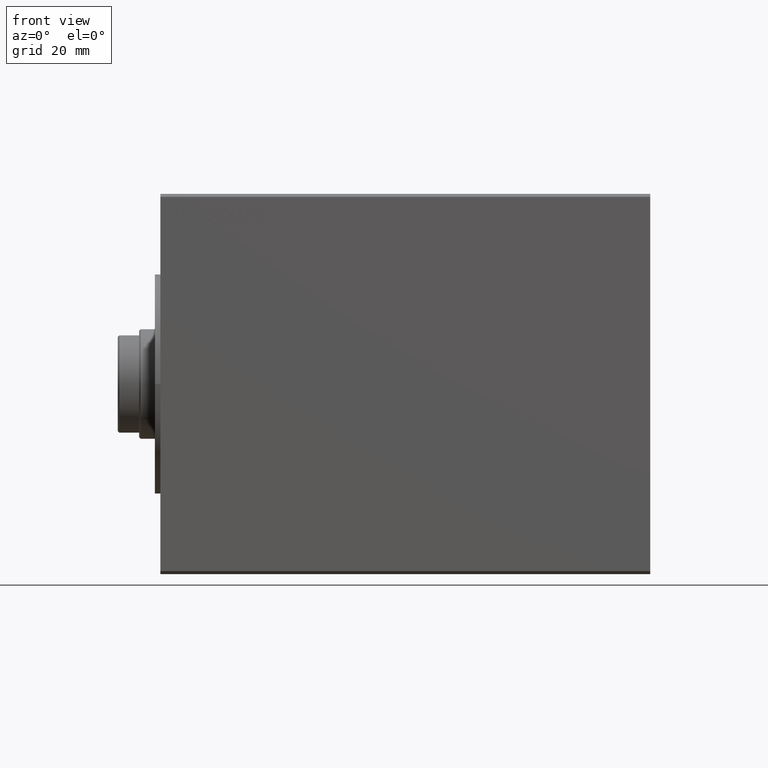
[diagram: clean part render]
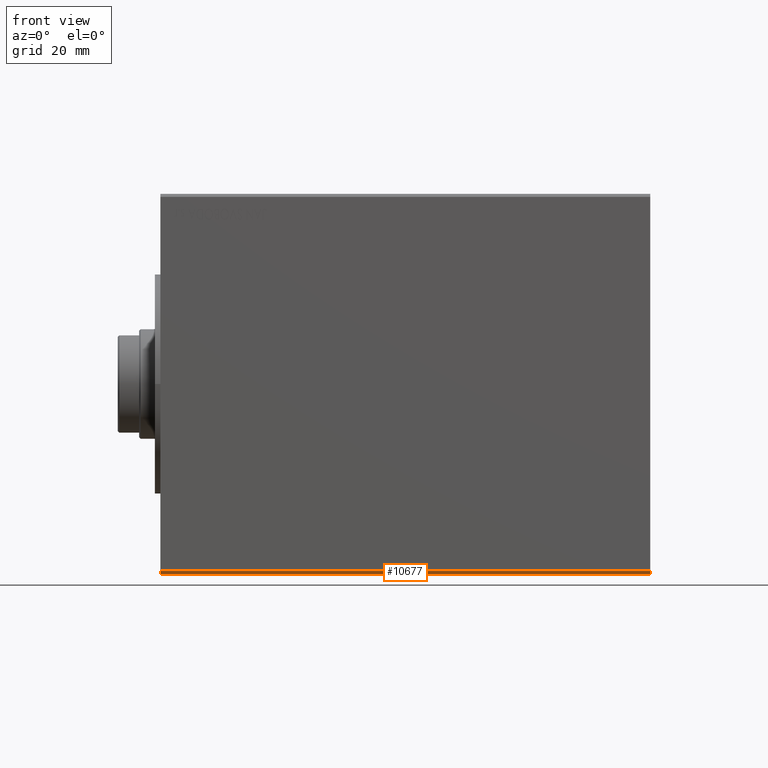
[diagram: same view with one face highlighted and labeled with its STEP entity id]
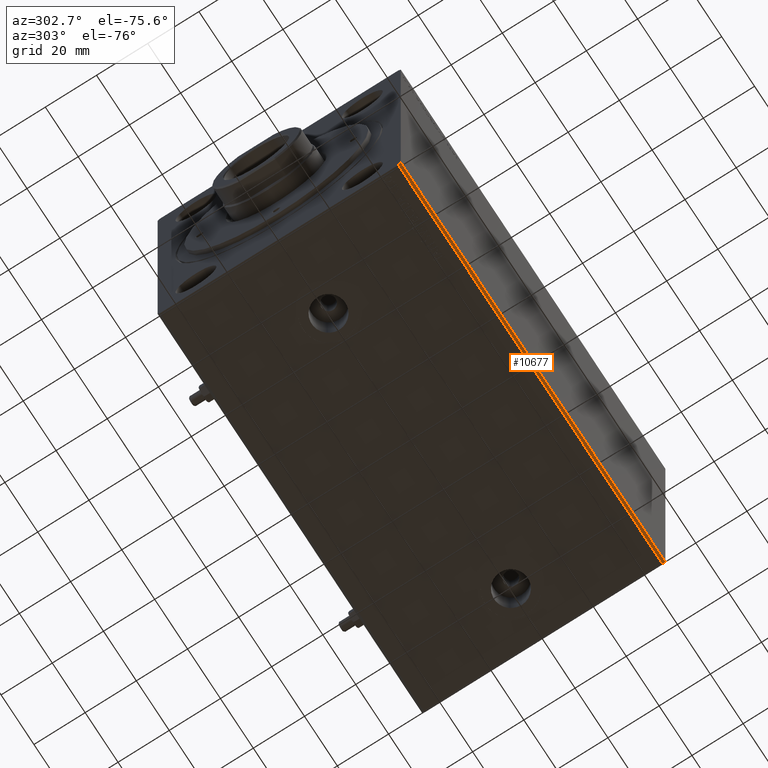
[diagram: same view with one face highlighted and labeled with its STEP entity id]
A machine part, front view. The second image highlights one B-rep face of the part: STEP entity #10677.
A second angle (auxiliary view) of the same face is appended — the face is thin or edge-on in the first view.
In plain terms, the highlighted planar face has unit normal (0, 0.7071, 0.7071).
Its self-contained STEP definition (entity closure, byte-faithful):
#1593 = ORIENTED_EDGE ( 'NONE', *, *, #7873, .F. ) ;
#3307 = LINE ( 'NONE', #23616, #25229 ) ;
#4837 = ORIENTED_EDGE ( 'NONE', *, *, #7835, .T. ) ;
#5631 = CARTESIAN_POINT ( 'NONE',  ( 0.000000000000000000, -46.50000000000000000, -62.50000000000001421 ) ) ;
#5687 = VECTOR ( 'NONE', #14054, 1000.000000000000114 ) ;
#6146 = CARTESIAN_POINT ( 'NONE',  ( 0.000000000000000000, -47.49999999999999289, -61.50000000000001421 ) ) ;
#6345 = VECTOR ( 'NONE', #16417, 1000.000000000000114 ) ;
#6965 = VERTEX_POINT ( 'NONE', #12879 ) ;
#7248 = AXIS2_PLACEMENT_3D ( 'NONE', #10171, #17034, #20245 ) ;
#7835 = EDGE_CURVE ( 'NONE', #6965, #29598, #36856, .T. ) ;
#7873 = EDGE_CURVE ( 'NONE', #6965, #41443, #10181, .T. ) ;
#10171 = CARTESIAN_POINT ( 'NONE',  ( 161.0000000000000000, -47.49999999999999289, -61.50000000000001421 ) ) ;
#10181 = LINE ( 'NONE', #34133, #5687 ) ;
#10677 = ADVANCED_FACE ( 'NONE', ( #43459 ), #30709, .F. ) ;
#12879 = CARTESIAN_POINT ( 'NONE',  ( 161.0000000000000000, -47.49999999999999289, -61.50000000000001421 ) ) ;
#14031 = EDGE_LOOP ( 'NONE', ( #25361, #44522, #1593, #4837 ) ) ;
#14054 = DIRECTION ( 'NONE',  ( 0.000000000000000000, 0.7071067811865451302, -0.7071067811865500152 ) ) ;
#16417 = DIRECTION ( 'NONE',  ( 0.000000000000000000, 0.7071067811865451302, -0.7071067811865500152 ) ) ;
#16641 = VECTOR ( 'NONE', #33224, 1000.000000000000000 ) ;
#17034 = DIRECTION ( 'NONE',  ( -0.000000000000000000, 0.7071067811865499042, 0.7071067811865451302 ) ) ;
#19059 = CARTESIAN_POINT ( 'NONE',  ( 161.0000000000000000, -46.50000000000000000, -62.50000000000001421 ) ) ;
#19786 = EDGE_CURVE ( 'NONE', #29598, #23510, #30325, .T. ) ;
#20245 = DIRECTION ( 'NONE',  ( 0.000000000000000000, -0.7071067811865451302, 0.7071067811865499042 ) ) ;
#20652 = DIRECTION ( 'NONE',  ( -1.000000000000000000, -0.000000000000000000, -0.000000000000000000 ) ) ;
#23510 = VERTEX_POINT ( 'NONE', #5631 ) ;
#23616 = CARTESIAN_POINT ( 'NONE',  ( 161.0000000000000000, -46.50000000000000000, -62.50000000000001421 ) ) ;
#25229 = VECTOR ( 'NONE', #20652, 1000.000000000000000 ) ;
#25361 = ORIENTED_EDGE ( 'NONE', *, *, #19786, .T. ) ;
#28763 = CARTESIAN_POINT ( 'NONE',  ( 0.000000000000000000, -47.49999999999999289, -61.50000000000001421 ) ) ;
#29598 = VERTEX_POINT ( 'NONE', #28763 ) ;
#30325 = LINE ( 'NONE', #6146, #6345 ) ;
#30709 = PLANE ( 'NONE',  #7248 ) ;
#33224 = DIRECTION ( 'NONE',  ( -1.000000000000000000, -0.000000000000000000, -0.000000000000000000 ) ) ;
#34133 = CARTESIAN_POINT ( 'NONE',  ( 161.0000000000000000, -47.49999999999999289, -61.50000000000001421 ) ) ;
#36627 = CARTESIAN_POINT ( 'NONE',  ( 161.0000000000000000, -47.49999999999999289, -61.50000000000001421 ) ) ;
#36856 = LINE ( 'NONE', #36627, #16641 ) ;
#41443 = VERTEX_POINT ( 'NONE', #19059 ) ;
#42238 = EDGE_CURVE ( 'NONE', #41443, #23510, #3307, .T. ) ;
#43459 = FACE_OUTER_BOUND ( 'NONE', #14031, .T. ) ;
#44522 = ORIENTED_EDGE ( 'NONE', *, *, #42238, .F. ) ;